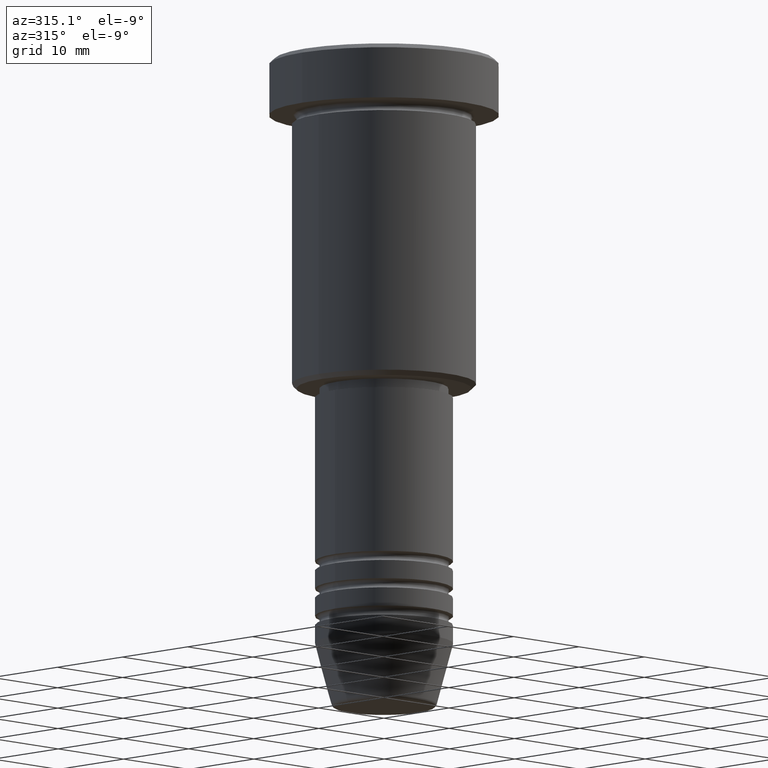
[diagram: clean part render]
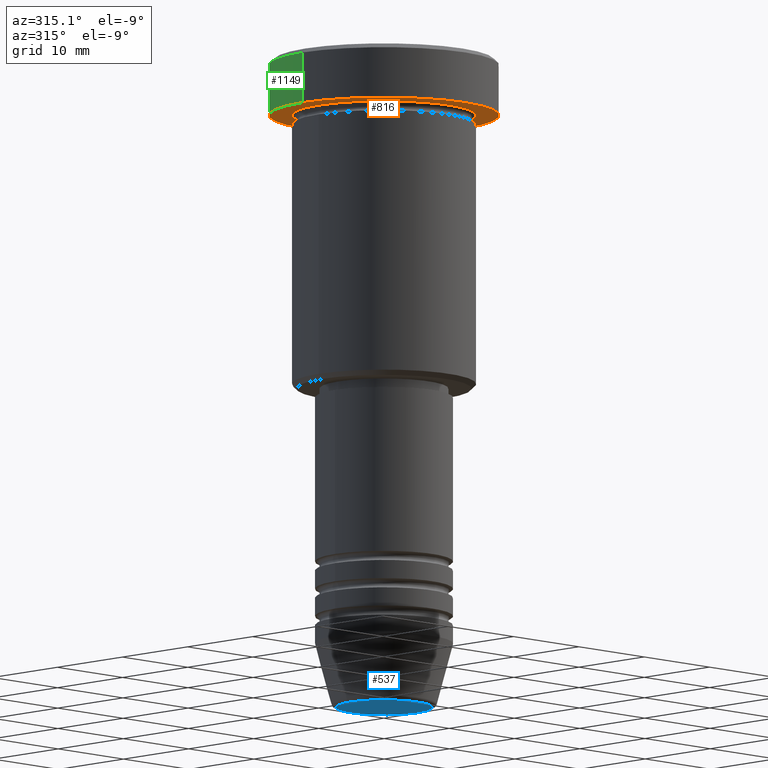
[diagram: same view with three faces highlighted in distinct colors, each labeled with its STEP entity id]
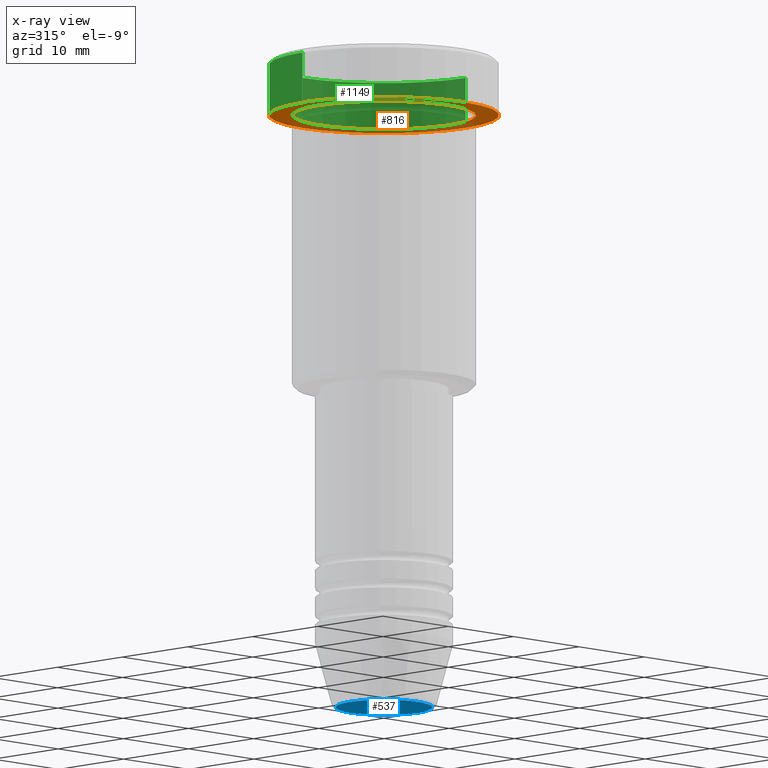
[diagram: x-ray of the same camera — body ghosted, the three highlighted faces saturated]
A machine part, auxiliary view with three faces highlighted in distinct colors.
The next image is the same camera in x-ray (body ghosted, the three faces saturated) — at least one of them is partly hidden behind the body in this view.
Their STEP definitions:

[orange] entity #816 — the highlighted planar face has unit normal (0, 0, -1).
#18 = CARTESIAN_POINT ( 'NONE',  ( 0.000000000000000000, 0.000000000000000000, -5.999999999999996447 ) ) ;
#114 = CARTESIAN_POINT ( 'NONE',  ( -10.00000000000000000, 0.000000000000000000, -5.999999999999996447 ) ) ;
#116 = EDGE_CURVE ( 'NONE', #644, #154, #789, .T. ) ;
#133 = CARTESIAN_POINT ( 'NONE',  ( 0.000000000000000000, 12.50000000000000000, -5.999999999999996447 ) ) ;
#144 = CARTESIAN_POINT ( 'NONE',  ( 0.000000000000000000, 0.000000000000000000, -5.999999999999996447 ) ) ;
#154 = VERTEX_POINT ( 'NONE', #926 ) ;
#158 = AXIS2_PLACEMENT_3D ( 'NONE', #179, #1007, #736 ) ;
#179 = CARTESIAN_POINT ( 'NONE',  ( 0.000000000000000000, 0.000000000000000000, -5.999999999999996447 ) ) ;
#247 = DIRECTION ( 'NONE',  ( -0.000000000000000000, -0.000000000000000000, 1.000000000000000000 ) ) ;
#251 = CIRCLE ( 'NONE', #158, 12.50000000000000000 ) ;
#261 = EDGE_CURVE ( 'NONE', #154, #644, #325, .T. ) ;
#283 = DIRECTION ( 'NONE',  ( -0.000000000000000000, -0.000000000000000000, 1.000000000000000000 ) ) ;
#325 = CIRCLE ( 'NONE', #986, 10.00000000000000000 ) ;
#362 = EDGE_CURVE ( 'NONE', #563, #872, #251, .T. ) ;
#388 = DIRECTION ( 'NONE',  ( -1.000000000000000000, 0.000000000000000000, 0.000000000000000000 ) ) ;
#422 = EDGE_LOOP ( 'NONE', ( #742, #928 ) ) ;
#426 = DIRECTION ( 'NONE',  ( 1.000000000000000000, 0.000000000000000000, 0.000000000000000000 ) ) ;
#429 = DIRECTION ( 'NONE',  ( -1.000000000000000000, 0.000000000000000000, 0.000000000000000000 ) ) ;
#493 = DIRECTION ( 'NONE',  ( -1.000000000000000000, 0.000000000000000000, -0.000000000000000000 ) ) ;
#513 = CIRCLE ( 'NONE', #1008, 12.50000000000000000 ) ;
#516 = AXIS2_PLACEMENT_3D ( 'NONE', #18, #283, #388 ) ;
#563 = VERTEX_POINT ( 'NONE', #584 ) ;
#573 = ORIENTED_EDGE ( 'NONE', *, *, #116, .T. ) ;
#584 = CARTESIAN_POINT ( 'NONE',  ( -12.50000000000000000, 1.530808498934191521E-15, -5.999999999999996447 ) ) ;
#591 = PLANE ( 'NONE',  #933 ) ;
#607 = DIRECTION ( 'NONE',  ( -0.000000000000000000, -0.000000000000000000, 1.000000000000000000 ) ) ;
#644 = VERTEX_POINT ( 'NONE', #114 ) ;
#702 = CARTESIAN_POINT ( 'NONE',  ( 0.000000000000000000, 0.000000000000000000, -5.999999999999996447 ) ) ;
#714 = CARTESIAN_POINT ( 'NONE',  ( 12.50000000000000000, 0.000000000000000000, -5.999999999999996447 ) ) ;
#723 = EDGE_CURVE ( 'NONE', #872, #563, #513, .T. ) ;
#736 = DIRECTION ( 'NONE',  ( 1.000000000000000000, 0.000000000000000000, 0.000000000000000000 ) ) ;
#742 = ORIENTED_EDGE ( 'NONE', *, *, #723, .F. ) ;
#788 = EDGE_LOOP ( 'NONE', ( #573, #874 ) ) ;
#789 = CIRCLE ( 'NONE', #516, 10.00000000000000000 ) ;
#793 = DIRECTION ( 'NONE',  ( 0.000000000000000000, 0.000000000000000000, -1.000000000000000000 ) ) ;
#816 = ADVANCED_FACE ( 'NONE', ( #1155, #876 ), #591, .T. ) ;
#872 = VERTEX_POINT ( 'NONE', #714 ) ;
#874 = ORIENTED_EDGE ( 'NONE', *, *, #261, .T. ) ;
#876 = FACE_OUTER_BOUND ( 'NONE', #422, .T. ) ;
#926 = CARTESIAN_POINT ( 'NONE',  ( 10.00000000000000000, 1.224646799147353256E-15, -5.999999999999996447 ) ) ;
#928 = ORIENTED_EDGE ( 'NONE', *, *, #362, .F. ) ;
#933 = AXIS2_PLACEMENT_3D ( 'NONE', #133, #793, #493 ) ;
#986 = AXIS2_PLACEMENT_3D ( 'NONE', #144, #607, #429 ) ;
#1007 = DIRECTION ( 'NONE',  ( -0.000000000000000000, -0.000000000000000000, 1.000000000000000000 ) ) ;
#1008 = AXIS2_PLACEMENT_3D ( 'NONE', #702, #247, #426 ) ;
#1155 = FACE_BOUND ( 'NONE', #788, .T. ) ;

[blue] entity #537 — the highlighted planar face has unit normal (0, -0, 1).
#104 = EDGE_CURVE ( 'NONE', #143, #1056, #1070, .T. ) ;
#143 = VERTEX_POINT ( 'NONE', #1016 ) ;
#194 = DIRECTION ( 'NONE',  ( 0.000000000000000000, 0.000000000000000000, -1.000000000000000000 ) ) ;
#295 = DIRECTION ( 'NONE',  ( 0.000000000000000000, -0.000000000000000000, 1.000000000000000000 ) ) ;
#342 = DIRECTION ( 'NONE',  ( 0.000000000000000000, 0.000000000000000000, -1.000000000000000000 ) ) ;
#398 = AXIS2_PLACEMENT_3D ( 'NONE', #460, #295, #494 ) ;
#458 = CARTESIAN_POINT ( 'NONE',  ( 5.240692158992654726, 0.000000000000000000, -71.00000000000001421 ) ) ;
#460 = CARTESIAN_POINT ( 'NONE',  ( 0.000000000000000000, 0.000000000000000000, -71.00000000000001421 ) ) ;
#488 = EDGE_LOOP ( 'NONE', ( #794, #500 ) ) ;
#494 = DIRECTION ( 'NONE',  ( 1.000000000000000000, 0.000000000000000000, 0.000000000000000000 ) ) ;
#500 = ORIENTED_EDGE ( 'NONE', *, *, #104, .T. ) ;
#537 = ADVANCED_FACE ( 'NONE', ( #1014 ), #1117, .F. ) ;
#598 = DIRECTION ( 'NONE',  ( 1.000000000000000000, 0.000000000000000000, 0.000000000000000000 ) ) ;
#710 = AXIS2_PLACEMENT_3D ( 'NONE', #773, #342, #598 ) ;
#739 = DIRECTION ( 'NONE',  ( 1.000000000000000000, 0.000000000000000000, 0.000000000000000000 ) ) ;
#753 = EDGE_CURVE ( 'NONE', #1056, #143, #803, .T. ) ;
#773 = CARTESIAN_POINT ( 'NONE',  ( 0.000000000000000000, 0.000000000000000000, -71.00000000000001421 ) ) ;
#794 = ORIENTED_EDGE ( 'NONE', *, *, #753, .T. ) ;
#803 = CIRCLE ( 'NONE', #710, 5.240692158992654726 ) ;
#907 = CARTESIAN_POINT ( 'NONE',  ( 0.000000000000000000, 0.000000000000000000, -71.00000000000001421 ) ) ;
#1014 = FACE_OUTER_BOUND ( 'NONE', #488, .T. ) ;
#1016 = CARTESIAN_POINT ( 'NONE',  ( -5.240692158992654726, 6.713726370671654515E-16, -71.00000000000001421 ) ) ;
#1050 = AXIS2_PLACEMENT_3D ( 'NONE', #907, #194, #739 ) ;
#1056 = VERTEX_POINT ( 'NONE', #458 ) ;
#1070 = CIRCLE ( 'NONE', #1050, 5.240692158992654726 ) ;
#1117 = PLANE ( 'NONE',  #398 ) ;

[green] entity #1149 — the highlighted cylindrical surface (partial cylindrical patch) has radius 12.5 mm, axis along (-0, -0, 1).
#15 = CARTESIAN_POINT ( 'NONE',  ( 12.50000000000000000, 0.000000000000000000, 0.000000000000000000 ) ) ;
#39 = DIRECTION ( 'NONE',  ( -0.000000000000000000, -0.000000000000000000, 1.000000000000000000 ) ) ;
#40 = VERTEX_POINT ( 'NONE', #717 ) ;
#45 = ORIENTED_EDGE ( 'NONE', *, *, #1161, .T. ) ;
#54 = VECTOR ( 'NONE', #487, 1000.000000000000000 ) ;
#172 = DIRECTION ( 'NONE',  ( 0.000000000000000000, 0.000000000000000000, -1.000000000000000000 ) ) ;
#247 = DIRECTION ( 'NONE',  ( -0.000000000000000000, -0.000000000000000000, 1.000000000000000000 ) ) ;
#349 = EDGE_CURVE ( 'NONE', #40, #661, #470, .T. ) ;
#397 = LINE ( 'NONE', #679, #641 ) ;
#426 = DIRECTION ( 'NONE',  ( 1.000000000000000000, 0.000000000000000000, 0.000000000000000000 ) ) ;
#447 = CARTESIAN_POINT ( 'NONE',  ( 0.000000000000000000, 0.000000000000000000, -0.5000000000000126565 ) ) ;
#470 = CIRCLE ( 'NONE', #648, 12.50000000000000000 ) ;
#487 = DIRECTION ( 'NONE',  ( -0.000000000000000000, -0.000000000000000000, 1.000000000000000000 ) ) ;
#513 = CIRCLE ( 'NONE', #1008, 12.50000000000000000 ) ;
#563 = VERTEX_POINT ( 'NONE', #584 ) ;
#571 = DIRECTION ( 'NONE',  ( 1.000000000000000000, 0.000000000000000000, 0.000000000000000000 ) ) ;
#584 = CARTESIAN_POINT ( 'NONE',  ( -12.50000000000000000, 1.530808498934191521E-15, -5.999999999999996447 ) ) ;
#641 = VECTOR ( 'NONE', #39, 1000.000000000000000 ) ;
#648 = AXIS2_PLACEMENT_3D ( 'NONE', #447, #172, #910 ) ;
#661 = VERTEX_POINT ( 'NONE', #850 ) ;
#679 = CARTESIAN_POINT ( 'NONE',  ( -12.50000000000000000, 1.530808498934191521E-15, 0.000000000000000000 ) ) ;
#702 = CARTESIAN_POINT ( 'NONE',  ( 0.000000000000000000, 0.000000000000000000, -5.999999999999996447 ) ) ;
#714 = CARTESIAN_POINT ( 'NONE',  ( 12.50000000000000000, 0.000000000000000000, -5.999999999999996447 ) ) ;
#717 = CARTESIAN_POINT ( 'NONE',  ( -12.50000000000000000, 1.530808498934191521E-15, -0.5000000000000126565 ) ) ;
#723 = EDGE_CURVE ( 'NONE', #872, #563, #513, .T. ) ;
#768 = LINE ( 'NONE', #15, #54 ) ;
#805 = ORIENTED_EDGE ( 'NONE', *, *, #349, .T. ) ;
#810 = EDGE_LOOP ( 'NONE', ( #961, #45, #805, #866 ) ) ;
#828 = CARTESIAN_POINT ( 'NONE',  ( 0.000000000000000000, 0.000000000000000000, 0.000000000000000000 ) ) ;
#846 = CYLINDRICAL_SURFACE ( 'NONE', #1078, 12.50000000000000000 ) ;
#850 = CARTESIAN_POINT ( 'NONE',  ( 12.50000000000000000, 0.000000000000000000, -0.5000000000000126565 ) ) ;
#866 = ORIENTED_EDGE ( 'NONE', *, *, #1160, .F. ) ;
#872 = VERTEX_POINT ( 'NONE', #714 ) ;
#910 = DIRECTION ( 'NONE',  ( 1.000000000000000000, 0.000000000000000000, 0.000000000000000000 ) ) ;
#961 = ORIENTED_EDGE ( 'NONE', *, *, #723, .T. ) ;
#1008 = AXIS2_PLACEMENT_3D ( 'NONE', #702, #247, #426 ) ;
#1078 = AXIS2_PLACEMENT_3D ( 'NONE', #828, #1128, #571 ) ;
#1122 = FACE_OUTER_BOUND ( 'NONE', #810, .T. ) ;
#1128 = DIRECTION ( 'NONE',  ( -0.000000000000000000, -0.000000000000000000, 1.000000000000000000 ) ) ;
#1149 = ADVANCED_FACE ( 'NONE', ( #1122 ), #846, .T. ) ;
#1160 = EDGE_CURVE ( 'NONE', #872, #661, #768, .T. ) ;
#1161 = EDGE_CURVE ( 'NONE', #563, #40, #397, .T. ) ;